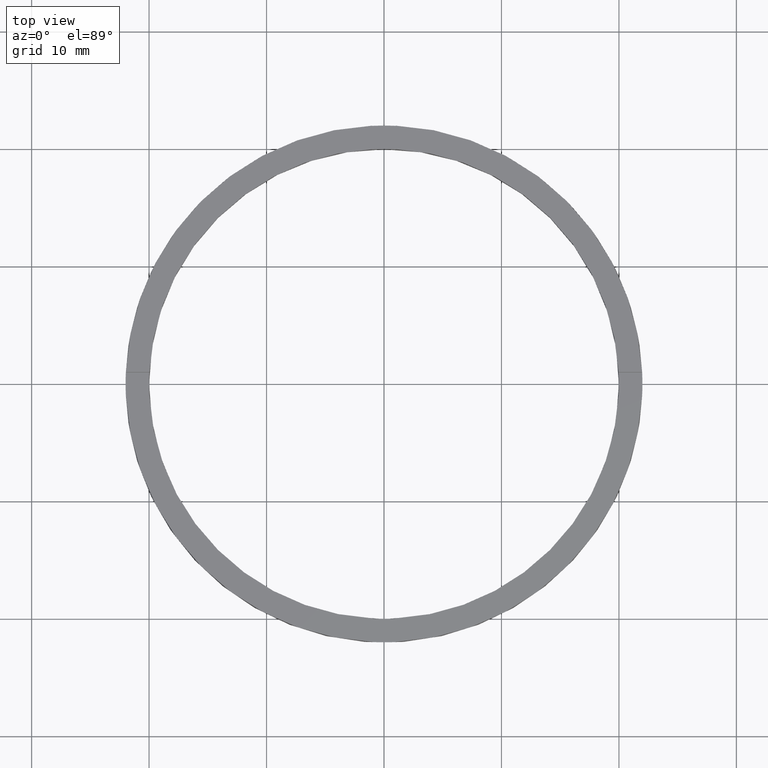
[diagram: clean part render]
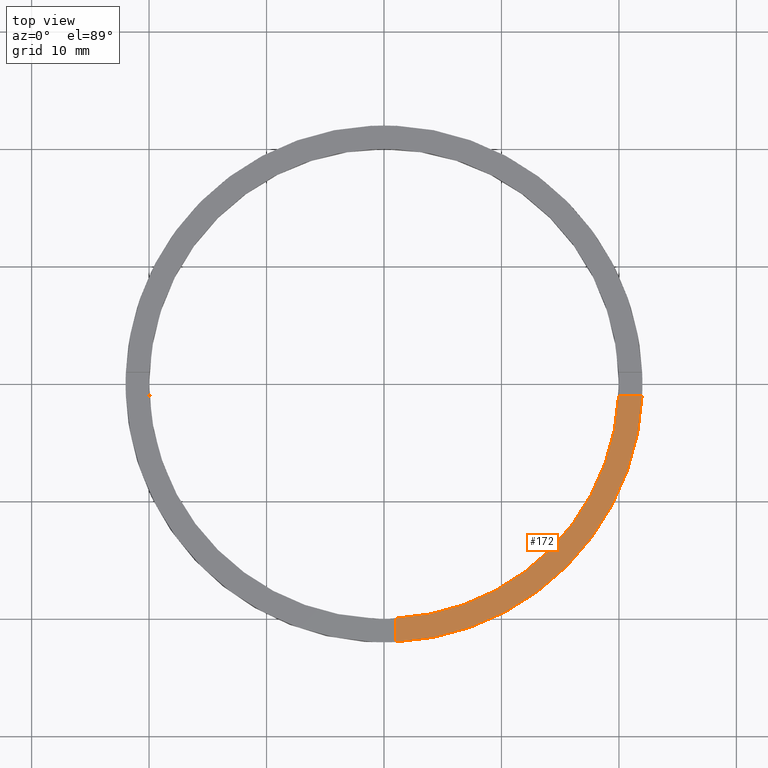
[diagram: same view with one face highlighted and labeled with its STEP entity id]
A machine part, top view. The second image highlights one B-rep face of the part: STEP entity #172.
In plain terms, the highlighted planar face has unit normal (0, 0, 1).
Its self-contained STEP definition (entity closure, byte-faithful):
#48 = DIRECTION ( 'NONE',  ( 0.000000000000000000, 0.000000000000000000, 1.000000000000000000 ) ) ;
#51 = VECTOR ( 'NONE', #291, 1000.000000000000000 ) ;
#68 = LINE ( 'NONE', #632, #51 ) ;
#92 = AXIS2_PLACEMENT_3D ( 'NONE', #297, #105, #696 ) ;
#103 = DIRECTION ( 'NONE',  ( 0.000000000000000000, 0.000000000000000000, 1.000000000000000000 ) ) ;
#105 = DIRECTION ( 'NONE',  ( 0.000000000000000000, 0.000000000000000000, 1.000000000000000000 ) ) ;
#109 = DIRECTION ( 'NONE',  ( 1.000000000000000000, 0.000000000000000000, 0.000000000000000000 ) ) ;
#110 = CARTESIAN_POINT ( 'NONE',  ( 0.9999999999998384625, -19.97498435543818829, 2.500000000000000000 ) ) ;
#141 = CARTESIAN_POINT ( 'NONE',  ( 19.97498435543817408, -1.000000000000158096, 2.500000000000000000 ) ) ;
#172 = ADVANCED_FACE ( 'NONE', ( #725 ), #539, .T. ) ;
#181 = VERTEX_POINT ( 'NONE', #141 ) ;
#225 = DIRECTION ( 'NONE',  ( 1.000000000000000000, 0.000000000000000000, -0.000000000000000000 ) ) ;
#231 = AXIS2_PLACEMENT_3D ( 'NONE', #483, #48, #109 ) ;
#258 = EDGE_LOOP ( 'NONE', ( #441, #503, #733, #467 ) ) ;
#264 = VERTEX_POINT ( 'NONE', #329 ) ;
#291 = DIRECTION ( 'NONE',  ( 1.000000000000000000, 4.336808689942018352E-17, 0.000000000000000000 ) ) ;
#297 = CARTESIAN_POINT ( 'NONE',  ( 0.000000000000000000, 0.000000000000000000, 2.500000000000000000 ) ) ;
#329 = CARTESIAN_POINT ( 'NONE',  ( 21.97726097583590388, -1.000000000000158096, 2.500000000000000000 ) ) ;
#330 = VECTOR ( 'NONE', #335, 1000.000000000000000 ) ;
#335 = DIRECTION ( 'NONE',  ( -1.301042606982605321E-16, 1.000000000000000000, -0.000000000000000000 ) ) ;
#348 = EDGE_CURVE ( 'NONE', #691, #264, #766, .T. ) ;
#394 = AXIS2_PLACEMENT_3D ( 'NONE', #678, #103, #225 ) ;
#441 = ORIENTED_EDGE ( 'NONE', *, *, #526, .F. ) ;
#467 = ORIENTED_EDGE ( 'NONE', *, *, #348, .T. ) ;
#483 = CARTESIAN_POINT ( 'NONE',  ( 0.000000000000000000, 0.000000000000000000, 2.500000000000000000 ) ) ;
#503 = ORIENTED_EDGE ( 'NONE', *, *, #726, .F. ) ;
#526 = EDGE_CURVE ( 'NONE', #181, #264, #68, .T. ) ;
#539 = PLANE ( 'NONE',  #394 ) ;
#568 = CARTESIAN_POINT ( 'NONE',  ( 0.9999999999998386846, -21.97726097583591809, 2.500000000000000000 ) ) ;
#574 = CIRCLE ( 'NONE', #92, 20.00000000000000000 ) ;
#594 = LINE ( 'NONE', #655, #330 ) ;
#615 = EDGE_CURVE ( 'NONE', #691, #777, #594, .T. ) ;
#632 = CARTESIAN_POINT ( 'NONE',  ( 11.99999999999999289, -1.000000000000158540, 2.500000000000000000 ) ) ;
#655 = CARTESIAN_POINT ( 'NONE',  ( 0.9999999999998373523, -12.00000000000017941, 2.500000000000000000 ) ) ;
#678 = CARTESIAN_POINT ( 'NONE',  ( 0.000000000000000000, 0.000000000000000000, 2.500000000000000000 ) ) ;
#691 = VERTEX_POINT ( 'NONE', #568 ) ;
#696 = DIRECTION ( 'NONE',  ( 1.000000000000000000, 0.000000000000000000, 0.000000000000000000 ) ) ;
#725 = FACE_OUTER_BOUND ( 'NONE', #258, .T. ) ;
#726 = EDGE_CURVE ( 'NONE', #777, #181, #574, .T. ) ;
#733 = ORIENTED_EDGE ( 'NONE', *, *, #615, .F. ) ;
#766 = CIRCLE ( 'NONE', #231, 22.00000000000000000 ) ;
#777 = VERTEX_POINT ( 'NONE', #110 ) ;